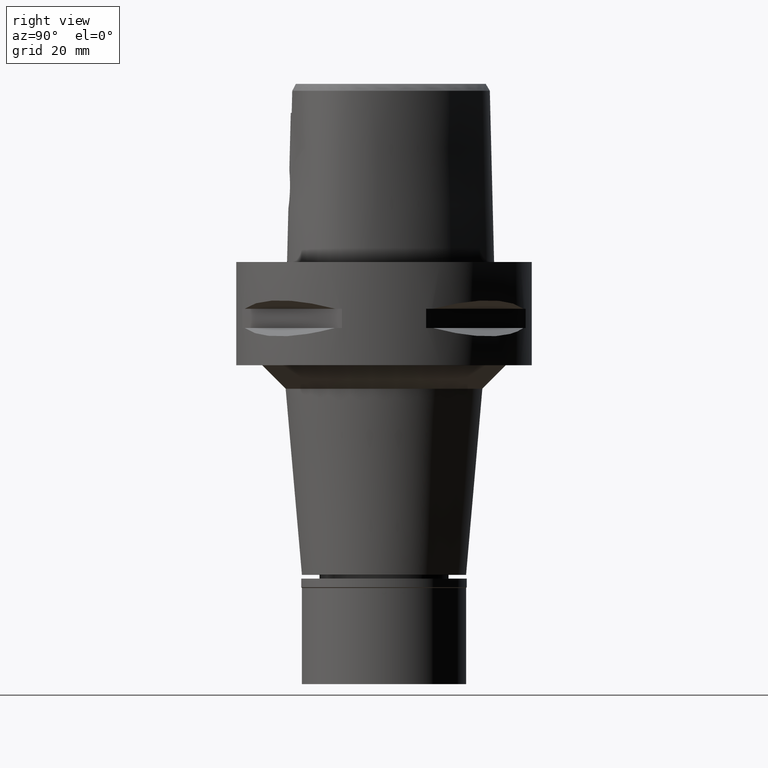
[diagram: clean part render]
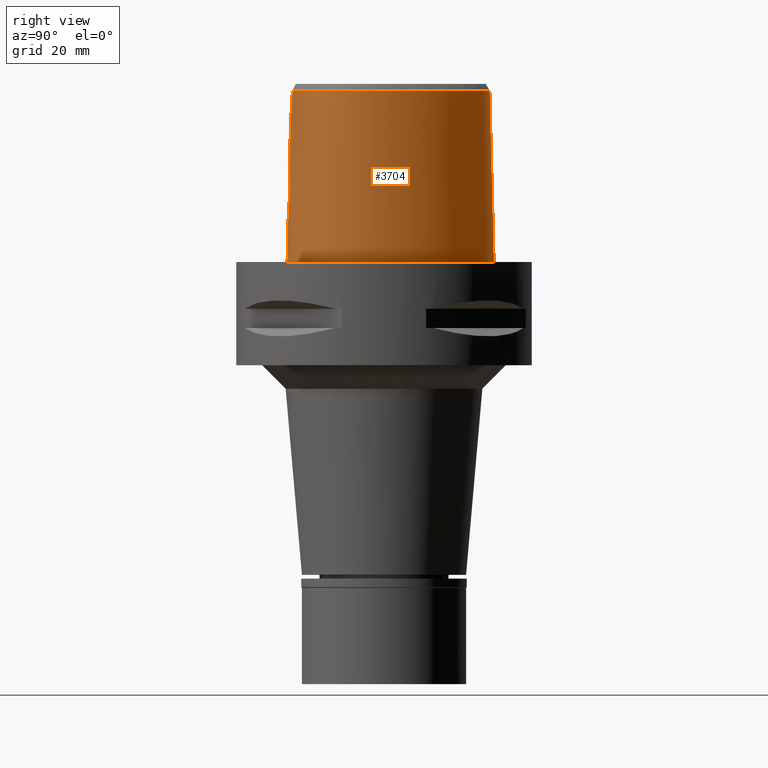
[diagram: same view with one face highlighted and labeled with its STEP entity id]
A machine part, right view. The second image highlights one B-rep face of the part: STEP entity #3704.
In plain terms, the highlighted face is a freeform B-spline surface patch.
Its self-contained STEP definition (entity closure, byte-faithful):
#3 = CARTESIAN_POINT ( 'NONE',  ( 6.288476596401999075, -20.00290581189999983, 11.93047847256000082 ) ) ;
#10 = CARTESIAN_POINT ( 'NONE',  ( 2.758179676619026299, -20.25337897196584791, 12.53390918840871926 ) ) ;
#11 = CARTESIAN_POINT ( 'NONE',  ( 19.55745538001410466, -11.29150212658093899, 36.52186680739950475 ) ) ;
#33 = CARTESIAN_POINT ( 'NONE',  ( 3.003234361619075088, -20.09064592609323441, 18.21745801850105906 ) ) ;
#34 = DIRECTION ( 'NONE',  ( 2.016568643993959699E-12, 0.02499051290953949525, -0.9996876883629797206 ) ) ;
#57 = CARTESIAN_POINT ( 'NONE',  ( 3.860403433738023526, -20.04330035600995430, 16.72651338064458670 ) ) ;
#74 = CARTESIAN_POINT ( 'NONE',  ( 17.53318595169999838, 10.12278939882999929, 24.59139440262000065 ) ) ;
#80 = CARTESIAN_POINT ( 'NONE',  ( 2.963657114689049354, -20.09293563006357175, 18.26079471621624606 ) ) ;
#89 = CARTESIAN_POINT ( 'NONE',  ( -1.131694588379999952E-11, -20.67499999999999716, 1.488068927338999721E-13 ) ) ;
#95 = CARTESIAN_POINT ( 'NONE',  ( 7.259695533602999795, 20.78233581071000202, 24.59139440262000065 ) ) ;
#102 = CARTESIAN_POINT ( 'NONE',  ( 3.765593220700886423, -20.04704214534181261, 16.99108095766544935 ) ) ;
#124 = CARTESIAN_POINT ( 'NONE',  ( 5.105252914032000433, 22.54305023722000101, -0.7304374575036000072 ) ) ;
#135 = CARTESIAN_POINT ( 'NONE',  ( 4.049995275655165372, -20.05320010482691373, 15.46762644421692201 ) ) ;
#152 = CARTESIAN_POINT ( 'NONE',  ( 20.46725053569000252, 4.555493682338999761, 11.93047847256000082 ) ) ;
#173 = CARTESIAN_POINT ( 'NONE',  ( 20.94844325358000248, -10.61175396771999857, -0.7304374575036000072 ) ) ;
#192 = VECTOR ( 'NONE', #34, 1000.000000000000227 ) ;
#194 = CARTESIAN_POINT ( 'NONE',  ( 14.40795639674408868, 15.64093750605300848, -3.727169554164789372E-07 ) ) ;
#216 = CARTESIAN_POINT ( 'NONE',  ( 19.64947366619033886, -12.82525391174291940, -3.727169554164789372E-07 ) ) ;
#260 = CARTESIAN_POINT ( 'NONE',  ( -0.7025952918525000257, 23.15559755017000043, 11.93047847256000082 ) ) ;
#290 = CARTESIAN_POINT ( 'NONE',  ( 2.438150645040000342, 22.68791659256999793, 24.59139440262000065 ) ) ;
#319 = CARTESIAN_POINT ( 'NONE',  ( 11.13012658933000054, -18.61140125332999773, 11.93047847256000082 ) ) ;
#346 = CARTESIAN_POINT ( 'NONE',  ( -0.6840631435195000387, -20.68668115835999899, -0.7304374575036000072 ) ) ;
#371 = DIRECTION ( 'NONE',  ( -8.648272217531810680E-13, -0.02499051295360945474, -0.9996876883618780463 ) ) ;
#384 = CARTESIAN_POINT ( 'NONE',  ( 2.570081009077924694, -20.27170108689831096, 12.36908902938837329 ) ) ;
#385 = CARTESIAN_POINT ( 'NONE',  ( 3.637738219117000238, -19.56971420299000286, 36.52185956443999970 ) ) ;
#422 = B_SPLINE_CURVE_WITH_KNOTS ( 'NONE', 3,
 ( #2561, #2510, #4153, #4104 ),
 .UNSPECIFIED., .F., .F.,
 ( 4, 4 ),
 ( 0.0000000000000000000, 1.000000000000000000 ),
 .UNSPECIFIED. ) ;
#430 = CARTESIAN_POINT ( 'NONE',  ( 3.850246712577160668, -20.10780614032428204, 14.21172176771008466 ) ) ;
#431 = CARTESIAN_POINT ( 'NONE',  ( 19.88562079789232229, 4.345879946636718394, 36.52186680739950475 ) ) ;
#454 = CARTESIAN_POINT ( 'NONE',  ( 16.38077705838000142, -14.94316477250999853, 37.25231033268999425 ) ) ;
#462 = CARTESIAN_POINT ( 'NONE',  ( 3.328551379731097271, -20.18727222456396220, 13.19186960082585891 ) ) ;
#478 = CARTESIAN_POINT ( 'NONE',  ( 17.80867316501999653, 10.28184213408999881, 11.93047847256000082 ) ) ;
#484 = CARTESIAN_POINT ( 'NONE',  ( 2.915545606164124948, -20.09570297646316206, 18.31119129211889884 ) ) ;
#499 = CARTESIAN_POINT ( 'NONE',  ( 21.62788420925999944, -4.104079497255999520, 24.59139440262000065 ) ) ;
#505 = CARTESIAN_POINT ( 'NONE',  ( 2.361140904826575682, -20.12552479265205108, 18.79118822093464658 ) ) ;
#525 = CARTESIAN_POINT ( 'NONE',  ( 20.65947777323999901, -8.729764438950001093, 37.25231033268999425 ) ) ;
#535 = CARTESIAN_POINT ( 'NONE',  ( 4.049643110176855743, -20.05399160878178222, 15.43795828973815354 ) ) ;
#550 = CARTESIAN_POINT ( 'NONE',  ( 20.96392264458999932, -8.820258357166000707, 24.59139440262000065 ) ) ;
#573 = CARTESIAN_POINT ( 'NONE',  ( 0.5662264715049001307, 22.56729439776000135, 37.25231033268999425 ) ) ;
#580 = ORIENTED_EDGE ( 'NONE', *, *, #2734, .T. ) ;
#594 = CARTESIAN_POINT ( 'NONE',  ( -1.131694588379999952E-11, -20.67499999999999716, 1.488068927338999721E-13 ) ) ;
#641 = CARTESIAN_POINT ( 'NONE',  ( 20.74942741761695686, 4.657187503176337451, -3.727169554164789372E-07 ) ) ;
#668 = CARTESIAN_POINT ( 'NONE',  ( -0.4685452004014000194, 23.16976083675000098, 11.93047847256000082 ) ) ;
#685 = CARTESIAN_POINT ( 'NONE',  ( 1.946611601990727136, -20.32311006286679955, 11.93862046598383486 ) ) ;
#711 = CARTESIAN_POINT ( 'NONE',  ( 2.853007646184911206, -20.24348516854157154, 12.62547111175370596 ) ) ;
#765 = CARTESIAN_POINT ( 'NONE',  ( 14.22011350746694447, -16.41829354688284681, 36.52186680739950475 ) ) ;
#815 = CARTESIAN_POINT ( 'NONE',  ( 3.504989208453384464, -20.16277707621499715, 13.46647361530370546 ) ) ;
#831 = CARTESIAN_POINT ( 'NONE',  ( 16.97022730764999920, -15.69280482675999799, -0.7304374575036000072 ) ) ;
#841 = CARTESIAN_POINT ( 'NONE',  ( 3.755991642143149623, -20.04748304465436348, 17.01495889863319277 ) ) ;
#842 = LINE ( 'NONE', #2009, #192 ) ;
#865 = CARTESIAN_POINT ( 'NONE',  ( 10.14358088801999891, 18.45723433447999895, 37.25231033268999425 ) ) ;
#874 = CARTESIAN_POINT ( 'NONE',  ( 2.467729343594488700, -20.12009802658483082, 18.71204267792738918 ) ) ;
#891 = CARTESIAN_POINT ( 'NONE',  ( 14.52531268159999911, -16.95413756753999834, 11.93047847256000082 ) ) ;
#897 = CARTESIAN_POINT ( 'NONE',  ( 2.305334229533273493, -20.12831948498839907, 18.83048013503712426 ) ) ;
#911 = CARTESIAN_POINT ( 'NONE',  ( 18.12052916771000000, -13.74516039444000093, 24.59139440262000065 ) ) ;
#916 = CARTESIAN_POINT ( 'NONE',  ( 3.559803832331179141, -20.05788146350372614, 17.44950363746711020 ) ) ;
#924 = EDGE_CURVE ( 'NONE', #3957, #2338, #842, .T. ) ;
#940 = CARTESIAN_POINT ( 'NONE',  ( 19.81622840921000162, -11.44090480521000153, 24.59139440262000065 ) ) ;
#963 = CARTESIAN_POINT ( 'NONE',  ( 22.24453908789068279, -4.100468749944812252, -3.727169554164789372E-07 ) ) ;
#979 = CARTESIAN_POINT ( 'NONE',  ( 0.8548392429687943217, 23.47500000932142683, -3.727169554164789372E-07 ) ) ;
#1001 = CARTESIAN_POINT ( 'NONE',  ( 2.503210924838999762, 22.99958948549999960, 11.93047847256000082 ) ) ;
#1013 = EDGE_CURVE ( 'NONE', #3957, #1900, #1132, .T. ) ;
#1026 = CARTESIAN_POINT ( 'NONE',  ( 18.56841065820153602, -14.16937988923751668, -3.727169554164789372E-07 ) ) ;
#1111 = CARTESIAN_POINT ( 'NONE',  ( 1.319600680390135672, -20.35863312411227710, 11.66994494017183470 ) ) ;
#1125 = CARTESIAN_POINT ( 'NONE',  ( 1.870063867128999746, -20.39691460823999947, 11.93047847256000082 ) ) ;
#1132 = B_SPLINE_CURVE_WITH_KNOTS ( 'NONE', 3,
 ( #3150, #1265, #1186, #1236, #3882, #2373, #3479, #3914, #431, #2776, #1919, #3941, #1961, #1634, #11, #3178, #3460, #2800, #765, #2300, #3836, #3510, #385 ),
 .UNSPECIFIED., .F., .F.,
 ( 4, 1, 1, 1, 1, 1, 1, 1, 1, 1, 1, 1, 1, 1, 1, 1, 1, 1, 1, 1, 4 ),
 ( 0.0000000000000000000, 0.04382683003322340037, 0.08765366006602592908, 0.1314804900989337832, 0.1753073201318416652, 0.2629609801974468475, 0.3506146402631573622, 0.4382683003288677659, 0.5259219603945782806, 0.5697487904274860515, 0.6135756204602886843, 0.6574024504930913171, 0.6793158655094925225, 0.7012292805259991990, 0.7231426955424004044, 0.7450561105588017208, 0.7888829405917096027, 0.8327097706246173736, 0.8765366006573148683, 0.9641902607230883326, 1.000000000000000000 ),
 .UNSPECIFIED. ) ;
#1151 = ORIENTED_EDGE ( 'NONE', *, *, #1650, .T. ) ;
#1156 = CARTESIAN_POINT ( 'NONE',  ( 2.953000302317453141, -20.23281254683988806, 12.72512295698803619 ) ) ;
#1170 = CARTESIAN_POINT ( 'NONE',  ( -1.411580633884000040E-12, -20.38876923348000147, 11.44999999999999929 ) ) ;
#1179 = CARTESIAN_POINT ( 'NONE',  ( -0.4561077449019999563, -20.69106755065000058, -0.7304374575036000072 ) ) ;
#1185 = CARTESIAN_POINT ( 'NONE',  ( 4.026067555606396731, -20.04243146964170563, 16.01312629722104575 ) ) ;
#1186 = CARTESIAN_POINT ( 'NONE',  ( 2.376843874103945264, 22.39422497744826757, 36.52186680739950475 ) ) ;
#1208 = CARTESIAN_POINT ( 'NONE',  ( 3.664274183422228326, -20.05181531545091289, 17.23726368440733836 ) ) ;
#1216 = CARTESIAN_POINT ( 'NONE',  ( 3.637738219117000238, -19.56971420299000286, 36.52185956443999970 ) ) ;
#1226 = CARTESIAN_POINT ( 'NONE',  ( 13.69241995467000095, 15.03666405495000191, 37.25231033268999425 ) ) ;
#1231 = B_SPLINE_SURFACE_WITH_KNOTS ( 'NONE', 3, 3, ( 
 ( #346, #2740, #1580, #4982 ),
 ( #1179, #2316, #3047, #4589 ),
 ( #2719, #1125, #4203, #1909 ),
 ( #3120, #3, #4663, #2235 ),
 ( #3769, #319, #3142, #1278 ),
 ( #4358, #891, #4334, #3980 ),
 ( #831, #1603, #2815, #454 ),
 ( #4792, #4384, #911, #3603 ),
 ( #3624, #2837, #2361, #2439 ),
 ( #4687, #4744, #940, #1326 ),
 ( #173, #3219, #2469, #1626 ),
 ( #4008, #3930, #550, #525 ),
 ( #2415, #3166, #2055, #1676 ),
 ( #3903, #3954, #499, #2080 ),
 ( #1698, #4766, #2022, #3196 ),
 ( #4715, #152, #3244, #1299 ),
 ( #3575, #478, #74, #1980 ),
 ( #2864, #3526, #1256, #1226 ),
 ( #2001, #4306, #2766, #865 ),
 ( #2392, #3553, #95, #2793 ),
 ( #124, #1653, #4504, #3741 ),
 ( #2903, #1001, #290, #4481 ),
 ( #4411, #1420, #2100, #573 ),
 ( #4835, #668, #1822, #2156 ),
 ( #4028, #260, #4049, #3309 ) ),
 .UNSPECIFIED., .F., .F., .F.,
 ( 4, 1, 1, 1, 1, 1, 1, 1, 1, 1, 1, 1, 1, 1, 1, 1, 1, 1, 1, 1, 1, 1, 4 ),
 ( 4, 4 ),
 ( -0.008985960173604000401, 0.0000000000000000000, 0.08333333333344000726, 0.1666666666668000230, 0.2083333333333000081, 0.2500000000000000000, 0.2916666666666999919, 0.3125000000000000000, 0.3333333333333000081, 0.3541666666666999919, 0.3750000000000000000, 0.4166666666666000163, 0.4583333333332000326, 0.4999999999998999689, 0.5833333333332000326, 0.6666666666664999852, 0.7499999999998000488, 0.8333333333329999704, 0.8749999999997000177, 0.9166666666664000651, 0.9583333333329999704, 1.000000000000000000, 1.011710456763000199 ),
 ( 7.050254990925999566E-09, 0.9999996404369999592 ),
 .UNSPECIFIED. ) ;
#1235 = CARTESIAN_POINT ( 'NONE',  ( 2.772326413960481961, -20.10389738242802338, 18.45539022241145233 ) ) ;
#1236 = CARTESIAN_POINT ( 'NONE',  ( 4.757642236485415843, 21.67478320247792567, 36.52186680739950475 ) ) ;
#1241 = VERTEX_POINT ( 'NONE', #2494 ) ;
#1256 = CARTESIAN_POINT ( 'NONE',  ( 13.93560880836000138, 15.24203803628000031, 24.59139440262000065 ) ) ;
#1264 = CARTESIAN_POINT ( 'NONE',  ( 3.950323019400626468, -20.04135421479582746, 16.40274729697467038 ) ) ;
#1265 = CARTESIAN_POINT ( 'NONE',  ( 0.7901461619524816626, 22.56201467849382780, 36.52186680739950475 ) ) ;
#1278 = CARTESIAN_POINT ( 'NONE',  ( 10.91263716675000062, -18.01320825019000083, 37.25231033268999425 ) ) ;
#1299 = CARTESIAN_POINT ( 'NONE',  ( 19.86834451928999812, 4.339653742813999848, 37.25231033268999425 ) ) ;
#1326 = CARTESIAN_POINT ( 'NONE',  ( 19.54161199365999835, -11.28235494317000054, 37.25231033268999425 ) ) ;
#1348 = CARTESIAN_POINT ( 'NONE',  ( 10.74572891661287422, 19.17433594467898317, -3.727169554164789372E-07 ) ) ;
#1420 = CARTESIAN_POINT ( 'NONE',  ( 0.5990982063365000165, 23.20165478056999930, 11.93047847256000082 ) ) ;
#1430 = CARTESIAN_POINT ( 'NONE',  ( 1.537967824490479307, -20.34761404973958676, 11.75337532982781674 ) ) ;
#1441 = CARTESIAN_POINT ( 'NONE',  ( 20.93173253064228589, -10.60431641004089087, -3.727169554164789372E-07 ) ) ;
#1513 = CARTESIAN_POINT ( 'NONE',  ( 0.8988479711755550383, -20.37494334817867170, 11.54879813003848810 ) ) ;
#1580 = CARTESIAN_POINT ( 'NONE',  ( -0.6718836875169000855, -20.05378870694000071, 24.59139440262000065 ) ) ;
#1586 = CARTESIAN_POINT ( 'NONE',  ( 4.050037399383524139, -20.04599349312466927, 15.75361975466953446 ) ) ;
#1603 = CARTESIAN_POINT ( 'NONE',  ( 16.77374389123000142, -15.44292480867999906, 11.93047847256000082 ) ) ;
#1610 = CARTESIAN_POINT ( 'NONE',  ( 4.045013207771817498, -20.05847505277892395, 15.28275217492799065 ) ) ;
#1626 = CARTESIAN_POINT ( 'NONE',  ( 20.07948521740999936, -10.22500077103999949, 37.25231033268999425 ) ) ;
#1633 = CARTESIAN_POINT ( 'NONE',  ( 3.128678969662743281, -20.08334280844270836, 18.07279819847135727 ) ) ;
#1634 = CARTESIAN_POINT ( 'NONE',  ( 20.09619608769164856, -10.23243839429906288, 36.52186680739950475 ) ) ;
#1650 = EDGE_CURVE ( 'NONE', #2152, #1241, #4685, .T. ) ;
#1653 = CARTESIAN_POINT ( 'NONE',  ( 4.987110703726999716, 22.24795289629999928, 11.93047847256000082 ) ) ;
#1660 = CARTESIAN_POINT ( 'NONE',  ( 4.020738798822047322, -20.06858537622218819, 14.99755720163532580 ) ) ;
#1676 = CARTESIAN_POINT ( 'NONE',  ( 21.13154908213999761, -6.714587105705999370, 37.25231033268999425 ) ) ;
#1695 = ORIENTED_EDGE ( 'NONE', *, *, #4930, .F. ) ;
#1698 = CARTESIAN_POINT ( 'NONE',  ( 21.99640701044999602, -0.2778990171974999868, -0.7304374575036000072 ) ) ;
#1720 = EDGE_LOOP ( 'NONE', ( #4592, #1805, #1695, #2366, #1151, #4905, #580, #2741 ) ) ;
#1725 = CARTESIAN_POINT ( 'NONE',  ( 3.736696120837999402, -19.67778323291999953, 31.80000004972999861 ) ) ;
#1800 = CARTESIAN_POINT ( 'NONE',  ( 0.0000000000000000000, -20.18628283968999781, 19.55000000000000071 ) ) ;
#1805 = ORIENTED_EDGE ( 'NONE', *, *, #1013, .T. ) ;
#1822 = CARTESIAN_POINT ( 'NONE',  ( -0.4558512756147999889, 22.85344991619000155, 24.59139440262000065 ) ) ;
#1824 = CARTESIAN_POINT ( 'NONE',  ( 3.637738219117000238, -19.56971420299000286, 36.52185956443999970 ) ) ;
#1833 = CARTESIAN_POINT ( 'NONE',  ( 3.042491796684546390, -20.22274507510627117, 12.82354767342775048 ) ) ;
#1900 = VERTEX_POINT ( 'NONE', #1824 ) ;
#1909 = CARTESIAN_POINT ( 'NONE',  ( 1.836480395436000057, -19.76356544504999846, 37.25231033268999425 ) ) ;
#1919 = CARTESIAN_POINT ( 'NONE',  ( 21.32871516740222972, -4.105831245034531563, 36.52186680739950475 ) ) ;
#1939 = CARTESIAN_POINT ( 'NONE',  ( 1.488028627205682186, -20.35026873354180665, 11.73319909950358131 ) ) ;
#1960 = CARTESIAN_POINT ( 'NONE',  ( 4.048221369819730242, -20.05572751809195609, 15.37605551827538974 ) ) ;
#1961 = CARTESIAN_POINT ( 'NONE',  ( 20.67704204633949416, -8.734985285293515034, 36.52186680739950475 ) ) ;
#1980 = CARTESIAN_POINT ( 'NONE',  ( 17.25769873839000113, 9.963736663570999852, 37.25231033268999425 ) ) ;
#1986 = CARTESIAN_POINT ( 'NONE',  ( 3.787426346252553699, -20.04607170149531115, 16.93525315949906229 ) ) ;
#2001 = CARTESIAN_POINT ( 'NONE',  ( 10.75753573455999934, 19.18839675325000016, -0.7304374575036000072 ) ) ;
#2008 = CARTESIAN_POINT ( 'NONE',  ( 1.767192251271850090, -20.15197845540204824, 19.14519926631098201 ) ) ;
#2009 = CARTESIAN_POINT ( 'NONE',  ( -1.574545528900000111E-11, 22.56201468012000078, 36.52186680743999858 ) ) ;
#2022 = CARTESIAN_POINT ( 'NONE',  ( 21.36961521418000132, -0.3886497543493999673, 24.59139440262000065 ) ) ;
#2055 = CARTESIAN_POINT ( 'NONE',  ( 21.44619314996000270, -6.759806582033999867, 24.59139440262000065 ) ) ;
#2063 = CARTESIAN_POINT ( 'NONE',  ( 3.265869583394081399, -20.07528142228560597, 17.89964299955867233 ) ) ;
#2080 = CARTESIAN_POINT ( 'NONE',  ( 21.31039853397999906, -4.105938495843999725, 37.25231033268999425 ) ) ;
#2100 = CARTESIAN_POINT ( 'NONE',  ( 0.5826623389207000736, 22.88447458917000432, 24.59139440262000065 ) ) ;
#2131 = CARTESIAN_POINT ( 'NONE',  ( 6.341471020867912145, -20.29812500922345819, -3.727169554164789372E-07 ) ) ;
#2152 = VERTEX_POINT ( 'NONE', #4236 ) ;
#2156 = CARTESIAN_POINT ( 'NONE',  ( -0.4431573508281000384, 22.53713899562999856, 37.25231033268999425 ) ) ;
#2170 = B_SPLINE_CURVE_WITH_KNOTS ( 'NONE', 3,
 ( #2674, #2299, #4161, #1513, #3054, #3835, #1111, #2650, #1939, #4597, #3478, #1430, #3459, #685, #2590, #3778, #384, #2968, #4514, #10, #3075, #3753, #4619, #711, #1156, #1833, #3378, #2245, #4647, #462, #3881, #815, #3561, #4342, #4285, #3509, #2344, #430, #4365, #2799, #1660, #3913, #1610, #1960, #535, #135, #1586, #1185, #1264, #4317, #57, #3126, #1986, #102, #841, #4669, #3149, #1208, #916, #2372, #2063, #1633, #3534, #33, #80, #484, #2725, #3177, #4692, #1235, #3103, #2775, #874, #505, #897, #3940, #2421, #2400, #2008, #2746, #3203, #4263, #4725, #3961, #2449 ),
 .UNSPECIFIED., .F., .F.,
 ( 4, 2, 2, 1, 1, 1, 2, 2, 2, 2, 2, 1, 1, 2, 2, 2, 2, 2, 2, 1, 2, 2, 2, 2, 1, 2, 2, 2, 2, 1, 1, 1, 2, 2, 2, 2, 2, 1, 1, 2, 2, 2, 2, 2, 2, 1, 2, 2, 4 ),
 ( 0.0000000000000000000, 0.06249999999998866185, 0.09374999999998298583, 0.1093749999999801270, 0.1171874999999786282, 0.1210937499999778927, 0.1230468749999775319, 0.1249999999999771572, 0.1874999999999651112, 0.2187499999999589217, 0.2343749999999559519, 0.2421874999999545919, 0.2460937499999538147, 0.2480468749999534817, 0.2499999999999531486, 0.2812499999999481526, 0.2968749999999456546, 0.3124999999999431566, 0.3437499999999381606, 0.3593749999999356626, 0.3671874999999345524, 0.3749999999999334421, 0.4374999999999243938, 0.4687499999999198974, 0.4843749999999174549, 0.4921874999999165112, 0.4999999999999155120, 0.5624999999999061862, 0.5937499999999015232, 0.6093749999998995248, 0.6171874999998983036, 0.6210937499998975264, 0.6230468749998971933, 0.6249999999998968603, 0.6874999999999120703, 0.7187499999999192868, 0.7343749999999230615, 0.7421874999999249489, 0.7460937499999259481, 0.7480468749999265032, 0.7499999999999269473, 0.7812499999999368283, 0.7968749999999416023, 0.8124999999999462652, 0.8437499999999554801, 0.8593749999999601430, 0.8671874999999623634, 0.8749999999999645839, 1.000000000000000000 ),
 .UNSPECIFIED. ) ;
#2181 = CARTESIAN_POINT ( 'NONE',  ( 5.098437020761553029, 22.52602539931565673, -3.727169554164789372E-07 ) ) ;
#2204 = LINE ( 'NONE', #1170, #3086 ) ;
#2235 = CARTESIAN_POINT ( 'NONE',  ( 6.175998637785000689, -19.37631814735000191, 37.25231033268999425 ) ) ;
#2245 = CARTESIAN_POINT ( 'NONE',  ( 3.210108431846594890, -20.20255916619493419, 13.02975361489744976 ) ) ;
#2299 = CARTESIAN_POINT ( 'NONE',  ( 0.2519697368789033387, -20.38876923348000503, 11.45000000000000107 ) ) ;
#2300 = CARTESIAN_POINT ( 'NONE',  ( 10.91891095220992014, -18.03046396093127157, 36.52186680739950475 ) ) ;
#2316 = CARTESIAN_POINT ( 'NONE',  ( -0.4520500682738999854, -20.37458456950999874, 11.93047847256000082 ) ) ;
#2338 = VERTEX_POINT ( 'NONE', #2792 ) ;
#2344 = CARTESIAN_POINT ( 'NONE',  ( 3.727121516743383545, -20.12854809717478233, 13.91496385434093774 ) ) ;
#2361 = CARTESIAN_POINT ( 'NONE',  ( 19.15132539328000405, -12.46323162004999929, 24.59139440262000065 ) ) ;
#2366 = ORIENTED_EDGE ( 'NONE', *, *, #3414, .T. ) ;
#2372 = CARTESIAN_POINT ( 'NONE',  ( 3.346444325181354706, -20.07049246070043935, 17.78503332968160677 ) ) ;
#2373 = CARTESIAN_POINT ( 'NONE',  ( 10.15538781007171387, 18.47129526702921254, 36.52186680739950475 ) ) ;
#2392 = CARTESIAN_POINT ( 'NONE',  ( 7.580410837343000807, 21.33037925809000157, -0.7304374575036000072 ) ) ;
#2400 = CARTESIAN_POINT ( 'NONE',  ( 1.856701250920566260, -20.14848423775658759, 19.09993988372152529 ) ) ;
#2415 = CARTESIAN_POINT ( 'NONE',  ( 22.07548128559999867, -6.850245534692000149, -0.7304374575036000072 ) ) ;
#2421 = CARTESIAN_POINT ( 'NONE',  ( 2.032175996688421638, -20.14130468679994124, 19.00576489867748364 ) ) ;
#2439 = CARTESIAN_POINT ( 'NONE',  ( 18.89485301902999836, -12.27684390833000094, 37.25231033268999425 ) ) ;
#2449 = CARTESIAN_POINT ( 'NONE',  ( 0.0000000000000000000, -20.18628283968999781, 19.55000000000000071 ) ) ;
#2469 = CARTESIAN_POINT ( 'NONE',  ( 20.36913789612999892, -10.35391850327000007, 24.59139440262000065 ) ) ;
#2489 = CARTESIAN_POINT ( 'NONE',  ( 7.571159439071173836, 21.31457032055926248, -3.727169554164789372E-07 ) ) ;
#2491 = CARTESIAN_POINT ( 'NONE',  ( 6.819697653479363616E-09, -19.98212988583497207, 27.71666688228305730 ) ) ;
#2494 = CARTESIAN_POINT ( 'NONE',  ( 0.0000000000000000000, -20.18628283968999781, 19.55000000000000071 ) ) ;
#2503 = VERTEX_POINT ( 'NONE', #3979 ) ;
#2510 = CARTESIAN_POINT ( 'NONE',  ( 2.503154195451082753, -19.81241979351004545, 31.80000012137776366 ) ) ;
#2557 = CARTESIAN_POINT ( 'NONE',  ( 21.55524826905910274, -8.996025393288993754, -3.727169554164789372E-07 ) ) ;
#2561 = CARTESIAN_POINT ( 'NONE',  ( 3.736696120837999402, -19.67778323291999953, 31.80000004972999861 ) ) ;
#2578 = CARTESIAN_POINT ( 'NONE',  ( 20.34961799365099466, -11.74885742654150533, -3.727169554164789372E-07 ) ) ;
#2590 = CARTESIAN_POINT ( 'NONE',  ( 2.282207029739346194, -20.29700151028904287, 12.15162930636602923 ) ) ;
#2650 = CARTESIAN_POINT ( 'NONE',  ( 1.432005274344079426, -20.35315137661976337, 11.71134280122707416 ) ) ;
#2674 = CARTESIAN_POINT ( 'NONE',  ( -1.411580633884000040E-12, -20.38876923348000147, 11.44999999999999929 ) ) ;
#2719 = CARTESIAN_POINT ( 'NONE',  ( 1.886855602975000101, -20.71358918984000042, -0.7304374575036000072 ) ) ;
#2725 = CARTESIAN_POINT ( 'NONE',  ( 2.894506219205052577, -20.09690955887032260, 18.33274339089201277 ) ) ;
#2734 = EDGE_CURVE ( 'NONE', #2503, #3992, #2204, .T. ) ;
#2740 = CARTESIAN_POINT ( 'NONE',  ( -0.6779734155181998956, -20.37023493264999985, 11.93047847256000082 ) ) ;
#2741 = ORIENTED_EDGE ( 'NONE', *, *, #3842, .T. ) ;
#2746 = CARTESIAN_POINT ( 'NONE',  ( 1.675120599133841148, -20.15532933629823020, 19.18749499249038237 ) ) ;
#2766 = CARTESIAN_POINT ( 'NONE',  ( 10.34823250352999935, 18.70095514072999876, 24.59139440262000065 ) ) ;
#2775 = CARTESIAN_POINT ( 'NONE',  ( 2.520050460812875759, -20.11738995382087936, 18.67115940202033997 ) ) ;
#2776 = CARTESIAN_POINT ( 'NONE',  ( 21.07429999883046534, -0.4408303635841072654, 36.52186680739950475 ) ) ;
#2792 = CARTESIAN_POINT ( 'NONE',  ( 5.792640471420000553E-11, 23.47499999999000053, 1.459943277381999819E-13 ) ) ;
#2793 = CARTESIAN_POINT ( 'NONE',  ( 7.099337881732999733, 20.50831408701999692, 37.25231033268999425 ) ) ;
#2799 = CARTESIAN_POINT ( 'NONE',  ( 4.002664568996730843, -20.07397280446545906, 14.86850854360806728 ) ) ;
#2800 = CARTESIAN_POINT ( 'NONE',  ( 16.39211273426244375, -14.95758104715563341, 36.52186680739950475 ) ) ;
#2815 = CARTESIAN_POINT ( 'NONE',  ( 16.57726047481000009, -15.19304479060000013, 24.59139440262000065 ) ) ;
#2837 = CARTESIAN_POINT ( 'NONE',  ( 19.40779776751999819, -12.64961933176000031, 11.93047847256000082 ) ) ;
#2864 = CARTESIAN_POINT ( 'NONE',  ( 14.42198651576000046, 15.65278599892999978, -0.7304374575036000072 ) ) ;
#2882 = B_SPLINE_CURVE_WITH_KNOTS ( 'NONE', 3,
 ( #594, #3366, #2131, #4915, #3668, #4079, #1026, #216, #2578, #1441, #2557, #4100, #963, #4817, #641, #3643, #194, #1348, #2489, #2181, #4889, #979, #3711 ),
 .UNSPECIFIED., .F., .F.,
 ( 4, 1, 1, 1, 1, 1, 1, 1, 1, 1, 1, 1, 1, 1, 1, 1, 1, 1, 1, 1, 4 ),
 ( 0.0000000000000000000, 0.08333333333344000726, 0.1666666666668000230, 0.2083333333333000081, 0.2500000000000000000, 0.2916666666666999919, 0.3125000000000000000, 0.3333333333333000081, 0.3541666666666999919, 0.3750000000000000000, 0.4166666666666000163, 0.4583333333332000326, 0.4999999999998999689, 0.5833333333332000326, 0.6666666666664999852, 0.7499999999998000488, 0.8333333333329999704, 0.8749999999997000177, 0.9166666666664000651, 0.9583333333329999704, 1.000000000000000000 ),
 .UNSPECIFIED. ) ;
#2903 = CARTESIAN_POINT ( 'NONE',  ( 2.568271204636999983, 23.31126237844000215, -0.7304374575036000072 ) ) ;
#2968 = CARTESIAN_POINT ( 'NONE',  ( 2.628027080897692436, -20.26624238139287115, 12.41747670474954290 ) ) ;
#3047 = CARTESIAN_POINT ( 'NONE',  ( -0.4479923916457999589, -20.05810158836000312, 24.59139440262000065 ) ) ;
#3054 = CARTESIAN_POINT ( 'NONE',  ( 1.028701314430592317, -20.37062275902201947, 11.58049741886263284 ) ) ;
#3075 = CARTESIAN_POINT ( 'NONE',  ( 2.808608589969339597, -20.24816661311874455, 12.58196638594038674 ) ) ;
#3086 = VECTOR ( 'NONE', #371, 1000.000000000000114 ) ;
#3103 = CARTESIAN_POINT ( 'NONE',  ( 2.673904828757010854, -20.10928166633798853, 18.54472627324864575 ) ) ;
#3120 = CARTESIAN_POINT ( 'NONE',  ( 6.344715575711000533, -20.31619964417000190, -0.7304374575036000072 ) ) ;
#3126 = CARTESIAN_POINT ( 'NONE',  ( 3.828814954410757032, -20.04436409866677593, 16.82317999465200131 ) ) ;
#3142 = CARTESIAN_POINT ( 'NONE',  ( 11.02138187803999791, -18.31230475175999928, 24.59139440262000065 ) ) ;
#3149 = CARTESIAN_POINT ( 'NONE',  ( 3.745459306425495516, -20.04797394566475788, 17.04080371184727483 ) ) ;
#3150 = CARTESIAN_POINT ( 'NONE',  ( -1.574545528900000111E-11, 22.56201468012000078, 36.52186680743999858 ) ) ;
#3166 = CARTESIAN_POINT ( 'NONE',  ( 21.76083721778000069, -6.805026058363000452, 11.93047847256000082 ) ) ;
#3177 = CARTESIAN_POINT ( 'NONE',  ( 2.880386059684327371, -20.09771851976560342, 18.34709984349605350 ) ) ;
#3178 = CARTESIAN_POINT ( 'NONE',  ( 18.90964962507504410, -12.28759713487154137, 36.52186680739950475 ) ) ;
#3196 = CARTESIAN_POINT ( 'NONE',  ( 21.05621931605000086, -0.4440251229254000287, 37.25231033268999425 ) ) ;
#3203 = CARTESIAN_POINT ( 'NONE',  ( 1.613182323487282410, -20.15753140428471468, 19.21500890072584866 ) ) ;
#3219 = CARTESIAN_POINT ( 'NONE',  ( 20.65879057485999937, -10.48283623550000065, 11.93047847256000082 ) ) ;
#3244 = CARTESIAN_POINT ( 'NONE',  ( 20.16779752749000210, 4.447573712576999405, 24.59139440262000065 ) ) ;
#3291 = CARTESIAN_POINT ( 'NONE',  ( 2.041042029990999821E-08, -19.88004246002000031, 31.80000004972000127 ) ) ;
#3309 = CARTESIAN_POINT ( 'NONE',  ( -0.6642815466879999908, 22.52377668767999808, 37.25231033268999425 ) ) ;
#3366 = CARTESIAN_POINT ( 'NONE',  ( 2.113823673620303989, -20.67500000931492821, -3.727169554164789372E-07 ) ) ;
#3378 = CARTESIAN_POINT ( 'NONE',  ( 3.169150985200430259, -20.20760989054311807, 12.97742286930016142 ) ) ;
#3414 = EDGE_CURVE ( 'NONE', #3706, #2152, #422, .T. ) ;
#3448 = B_SPLINE_CURVE_WITH_KNOTS ( 'NONE', 3,
 ( #4270, #4248, #3865, #1216 ),
 .UNSPECIFIED., .F., .F.,
 ( 4, 4 ),
 ( 0.0000000000000000000, 1.000000000000000000 ),
 .UNSPECIFIED. ) ;
#3459 = CARTESIAN_POINT ( 'NONE',  ( 1.734379789051324394, -20.33697246834272931, 11.83436638252415207 ) ) ;
#3460 = CARTESIAN_POINT ( 'NONE',  ( 17.90324024157894556, -13.53935104436586734, 36.52186680739950475 ) ) ;
#3478 = CARTESIAN_POINT ( 'NONE',  ( 1.527965580144372781, -20.34815231994709706, 11.74928068373174384 ) ) ;
#3479 = CARTESIAN_POINT ( 'NONE',  ( 13.70645019739350801, 15.04851265229904378, 36.52186680739950475 ) ) ;
#3509 = CARTESIAN_POINT ( 'NONE',  ( 3.714384130528385342, -20.13065104887392565, 13.88538127572184244 ) ) ;
#3510 = CARTESIAN_POINT ( 'NONE',  ( 4.467522181836431905, -19.48130276147793793, 36.52186680739950475 ) ) ;
#3526 = CARTESIAN_POINT ( 'NONE',  ( 14.17879766206000092, 15.44741201759999960, 11.93047847256000082 ) ) ;
#3534 = CARTESIAN_POINT ( 'NONE',  ( 3.080229322184858454, -20.08617626112498655, 18.13071590546251954 ) ) ;
#3553 = CARTESIAN_POINT ( 'NONE',  ( 7.420053185472999857, 21.05635753440000002, 11.93047847256000082 ) ) ;
#3561 = CARTESIAN_POINT ( 'NONE',  ( 3.599362307509538006, -20.14875877778753122, 13.64217581390560952 ) ) ;
#3575 = CARTESIAN_POINT ( 'NONE',  ( 18.08416037834000178, 10.44089486934999833, -0.7304374575036000072 ) ) ;
#3597 = CARTESIAN_POINT ( 'NONE',  ( -1.574545528900000111E-11, 22.56201468012000078, 36.52186680743999858 ) ) ;
#3603 = CARTESIAN_POINT ( 'NONE',  ( 17.88993672065999974, -13.52675036082999860, 37.25231033268999425 ) ) ;
#3624 = CARTESIAN_POINT ( 'NONE',  ( 19.66427014177000032, -12.83600704346999954, -0.7304374575036000072 ) ) ;
#3643 = CARTESIAN_POINT ( 'NONE',  ( 18.06826689337374603, 10.43171875469033338, -3.727169554164789372E-07 ) ) ;
#3668 = CARTESIAN_POINT ( 'NONE',  ( 14.67337964882495527, -17.21410157061511370, -3.727169554164789372E-07 ) ) ;
#3704 = ADVANCED_FACE ( 'NONE', ( #4178 ), #1231, .T. ) ;
#3706 = VERTEX_POINT ( 'NONE', #1725 ) ;
#3711 = CARTESIAN_POINT ( 'NONE',  ( 5.792640471420000553E-11, 23.47499999999000053, 1.459943277381999819E-13 ) ) ;
#3741 = CARTESIAN_POINT ( 'NONE',  ( 4.750826283117000060, 21.65775821445999583, 37.25231033268999425 ) ) ;
#3753 = CARTESIAN_POINT ( 'NONE',  ( 2.830175095658037598, -20.24590160278927797, 12.60298252333451252 ) ) ;
#3769 = CARTESIAN_POINT ( 'NONE',  ( 11.23887130061999962, -18.91049775489000240, -0.7304374575036000072 ) ) ;
#3778 = CARTESIAN_POINT ( 'NONE',  ( 2.396851615573344141, -20.28741283536913542, 12.23208293719065587 ) ) ;
#3835 = CARTESIAN_POINT ( 'NONE',  ( 1.222756221967064905, -20.36284569854002413, 11.63840396453690929 ) ) ;
#3836 = CARTESIAN_POINT ( 'NONE',  ( 7.300578979383786304, -19.07170738131021182, 36.52186680739950475 ) ) ;
#3842 = EDGE_CURVE ( 'NONE', #3992, #2338, #2882, .T. ) ;
#3865 = CARTESIAN_POINT ( 'NONE',  ( 3.671249151389730514, -19.60525176641679579, 34.94790639287000289 ) ) ;
#3881 = CARTESIAN_POINT ( 'NONE',  ( 3.437023659536085241, -20.17240543790910223, 13.35378256642169426 ) ) ;
#3882 = CARTESIAN_POINT ( 'NONE',  ( 7.108589361577442922, 20.52412316394332947, 36.52186680739950475 ) ) ;
#3903 = CARTESIAN_POINT ( 'NONE',  ( 22.26285555981000286, -4.100361500081000088, -0.7304374575036000072 ) ) ;
#3913 = CARTESIAN_POINT ( 'NONE',  ( 4.038482248008474329, -20.06165359963105388, 15.18817722017820415 ) ) ;
#3914 = CARTESIAN_POINT ( 'NONE',  ( 17.27359236349375493, 9.972912859139423603, 36.52186680739950475 ) ) ;
#3930 = CARTESIAN_POINT ( 'NONE',  ( 21.26836751593999963, -8.910752275383000409, 11.93047847256000082 ) ) ;
#3940 = CARTESIAN_POINT ( 'NONE',  ( 2.144427845722111758, -20.13626349860789233, 18.93810770241860553 ) ) ;
#3941 = CARTESIAN_POINT ( 'NONE',  ( 21.14970177530845774, -6.717195943319587137, 36.52186680739950475 ) ) ;
#3954 = CARTESIAN_POINT ( 'NONE',  ( 21.94536988453999982, -4.102220498669000293, 11.93047847256000082 ) ) ;
#3957 = VERTEX_POINT ( 'NONE', #3597 ) ;
#3961 = CARTESIAN_POINT ( 'NONE',  ( 0.4948470747701968486, -20.18628283969000492, 19.54999999999999716 ) ) ;
#3979 = CARTESIAN_POINT ( 'NONE',  ( -1.411580633884000040E-12, -20.38876923348000147, 11.44999999999999929 ) ) ;
#3980 = CARTESIAN_POINT ( 'NONE',  ( 14.21104810791999995, -16.40237725170999994, 37.25231033268999425 ) ) ;
#3992 = VERTEX_POINT ( 'NONE', #89 ) ;
#4008 = CARTESIAN_POINT ( 'NONE',  ( 21.57281238729000350, -9.001246193598998246, -0.7304374575036000072 ) ) ;
#4028 = CARTESIAN_POINT ( 'NONE',  ( -0.7217521644347000276, 23.47150798142000028, -0.7304374575036000072 ) ) ;
#4049 = CARTESIAN_POINT ( 'NONE',  ( -0.6834384192703000238, 22.83968711892999792, 24.59139440262000065 ) ) ;
#4079 = CARTESIAN_POINT ( 'NONE',  ( 16.95889173171761755, -15.67838867922683654, -3.727169554164789372E-07 ) ) ;
#4100 = CARTESIAN_POINT ( 'NONE',  ( 22.05732875248838809, -6.847636720081132111, -3.727169554164789372E-07 ) ) ;
#4104 = CARTESIAN_POINT ( 'NONE',  ( 2.041042029990999821E-08, -19.88004246002000031, 31.80000004972000127 ) ) ;
#4123 = CARTESIAN_POINT ( 'NONE',  ( 6.839690409372270780E-09, -20.08420636276309779, 23.63333344114137446 ) ) ;
#4153 = CARTESIAN_POINT ( 'NONE',  ( 1.251533272180834544, -19.88005341395529513, 31.80000012137777077 ) ) ;
#4161 = CARTESIAN_POINT ( 'NONE',  ( 0.5100579658808597205, -20.38531276215466903, 11.47358267918780683 ) ) ;
#4178 = FACE_OUTER_BOUND ( 'NONE', #1720, .T. ) ;
#4203 = CARTESIAN_POINT ( 'NONE',  ( 1.853272131282999835, -20.08024002664000207, 24.59139440262000065 ) ) ;
#4236 = CARTESIAN_POINT ( 'NONE',  ( 2.041042029990999821E-08, -19.88004246002000031, 31.80000004972000127 ) ) ;
#4248 = CARTESIAN_POINT ( 'NONE',  ( 3.704239288984441103, -19.64128042389065598, 33.37395322129999897 ) ) ;
#4263 = CARTESIAN_POINT ( 'NONE',  ( 1.583085234473553760, -20.15857747892415830, 19.22794739783308060 ) ) ;
#4270 = CARTESIAN_POINT ( 'NONE',  ( 3.736696120837999402, -19.67778323291999953, 31.80000004972999861 ) ) ;
#4285 = CARTESIAN_POINT ( 'NONE',  ( 3.686910441666811256, -20.13511169295956904, 13.82359477182902729 ) ) ;
#4306 = CARTESIAN_POINT ( 'NONE',  ( 10.55288411905000068, 18.94467594698999946, 11.93047847256000082 ) ) ;
#4317 = CARTESIAN_POINT ( 'NONE',  ( 3.918456791373584380, -20.04170609324362218, 16.53266420031117434 ) ) ;
#4334 = CARTESIAN_POINT ( 'NONE',  ( 14.36818039475999953, -16.67825740961999870, 24.59139440262000065 ) ) ;
#4342 = CARTESIAN_POINT ( 'NONE',  ( 3.644654988711822696, -20.14185568960223094, 13.73169098998871895 ) ) ;
#4358 = CARTESIAN_POINT ( 'NONE',  ( 14.68244496844000047, -17.23001772545000065, -0.7304374575036000072 ) ) ;
#4365 = CARTESIAN_POINT ( 'NONE',  ( 3.927790621355288891, -20.09243382074274820, 14.47756111166260595 ) ) ;
#4384 = CARTESIAN_POINT ( 'NONE',  ( 18.35112161477000114, -13.96357042806000059, 11.93047847256000082 ) ) ;
#4411 = CARTESIAN_POINT ( 'NONE',  ( 0.6155340737522999595, 23.51883497197999873, -0.7304374575036000072 ) ) ;
#4481 = CARTESIAN_POINT ( 'NONE',  ( 2.373090365241999677, 22.37624369964000337, 37.25231033268999425 ) ) ;
#4504 = CARTESIAN_POINT ( 'NONE',  ( 4.868968493421999888, 21.95285555537999755, 24.59139440262000065 ) ) ;
#4514 = CARTESIAN_POINT ( 'NONE',  ( 2.714817435285842517, -20.25772213911198349, 12.49437854279829274 ) ) ;
#4589 = CARTESIAN_POINT ( 'NONE',  ( -0.4439347150178000190, -19.74161860721999773, 37.25231033268999425 ) ) ;
#4592 = ORIENTED_EDGE ( 'NONE', *, *, #924, .F. ) ;
#4597 = CARTESIAN_POINT ( 'NONE',  ( 1.511996643077466285, -20.34900293593732101, 11.74281483622962519 ) ) ;
#4619 = CARTESIAN_POINT ( 'NONE',  ( 2.844541275131343472, -20.24438467540248965, 12.61708719065900297 ) ) ;
#4647 = CARTESIAN_POINT ( 'NONE',  ( 3.289399613302795622, -20.19244639184432444, 13.13636645578713846 ) ) ;
#4663 = CARTESIAN_POINT ( 'NONE',  ( 6.232237617093999482, -19.68961197962000043, 24.59139440262000065 ) ) ;
#4669 = CARTESIAN_POINT ( 'NONE',  ( 3.749536200694208343, -20.04778253193093107, 17.03086640830633058 ) ) ;
#4685 = B_SPLINE_CURVE_WITH_KNOTS ( 'NONE', 3,
 ( #3291, #2491, #4123, #1800 ),
 .UNSPECIFIED., .F., .F.,
 ( 4, 4 ),
 ( 0.0000000000000000000, 1.000000000000000000 ),
 .UNSPECIFIED. ) ;
#4687 = CARTESIAN_POINT ( 'NONE',  ( 20.36546124030999749, -11.75800452930000084, -0.7304374575036000072 ) ) ;
#4692 = CARTESIAN_POINT ( 'NONE',  ( 2.871987183427979318, -20.09819914941970609, 18.35556622516799763 ) ) ;
#4702 = EDGE_CURVE ( 'NONE', #2503, #1241, #2170, .T. ) ;
#4715 = CARTESIAN_POINT ( 'NONE',  ( 20.76670354388999939, 4.663413652101000118, -0.7304374575036000072 ) ) ;
#4725 = CARTESIAN_POINT ( 'NONE',  ( 1.027682876513654531, -20.17741712424492206, 19.45809765211528486 ) ) ;
#4744 = CARTESIAN_POINT ( 'NONE',  ( 20.09084482476000133, -11.59945466724999896, 11.93047847256000082 ) ) ;
#4766 = CARTESIAN_POINT ( 'NONE',  ( 21.68301111231999911, -0.3332743857734999926, 11.93047847256000082 ) ) ;
#4792 = CARTESIAN_POINT ( 'NONE',  ( 18.58171406182000140, -14.18198046166999937, -0.7304374575036000072 ) ) ;
#4817 = CARTESIAN_POINT ( 'NONE',  ( 21.97832648709144010, -0.2810937483697996120, -3.727169554164789372E-07 ) ) ;
#4835 = CARTESIAN_POINT ( 'NONE',  ( -0.4812391251881000254, 23.48607175731999774, -0.7304374575036000072 ) ) ;
#4889 = CARTESIAN_POINT ( 'NONE',  ( 2.564517728871615443, 23.29328125917631809, -3.727169554164789372E-07 ) ) ;
#4905 = ORIENTED_EDGE ( 'NONE', *, *, #4702, .F. ) ;
#4915 = CARTESIAN_POINT ( 'NONE',  ( 11.23259757047761731, -18.89324219629722279, -3.727169554164789372E-07 ) ) ;
#4930 = EDGE_CURVE ( 'NONE', #3706, #1900, #3448, .T. ) ;
#4982 = CARTESIAN_POINT ( 'NONE',  ( -0.6657939595156000534, -19.73734248122999801, 37.25231033268999425 ) ) ;